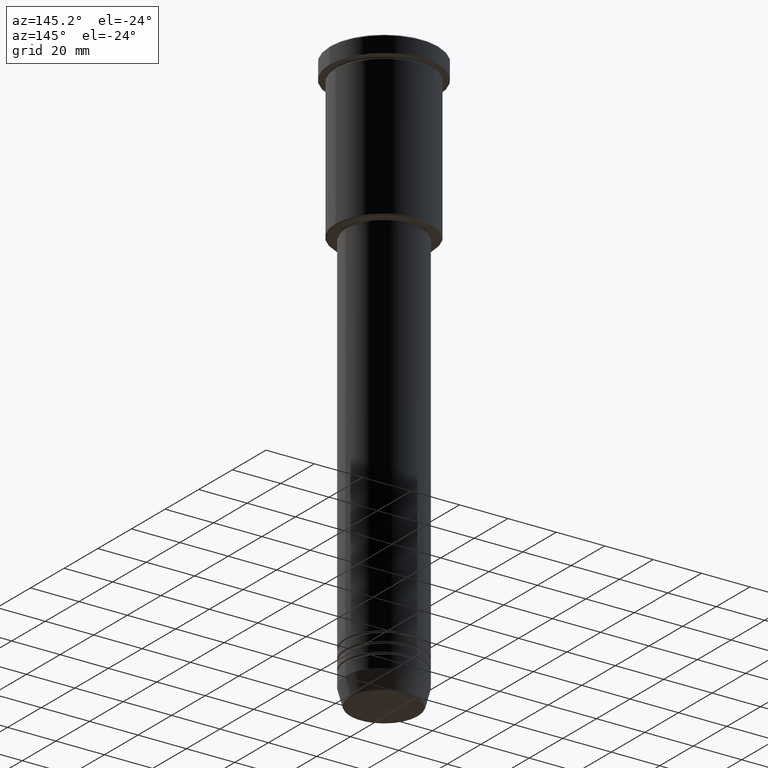
[diagram: clean part render]
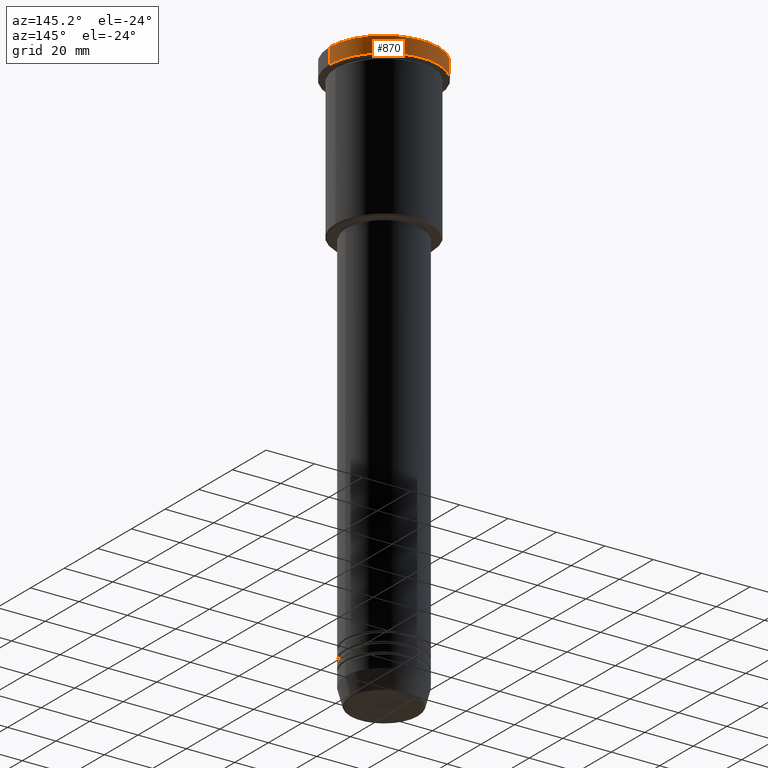
[diagram: same view with one face highlighted and labeled with its STEP entity id]
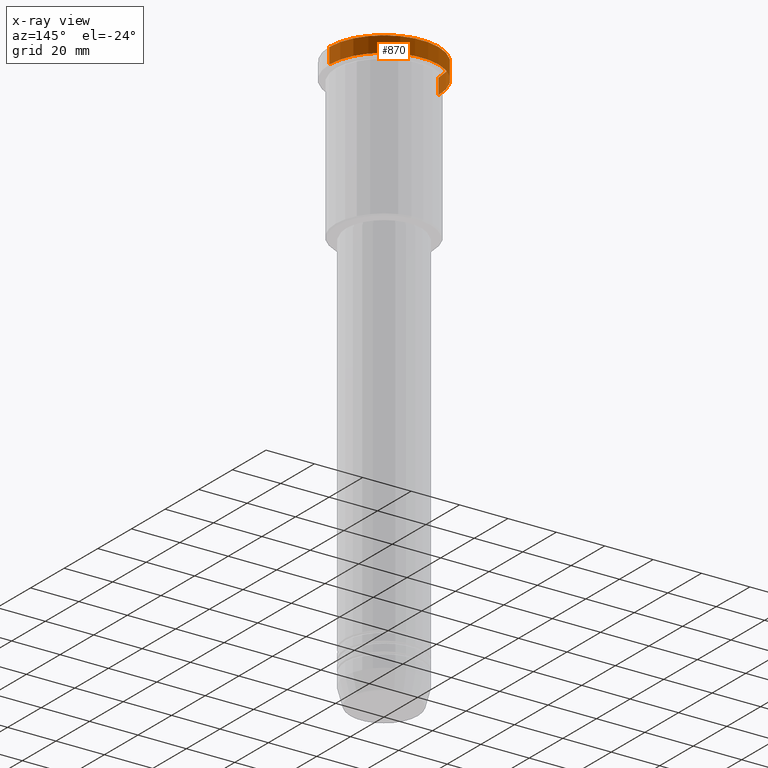
[diagram: x-ray of the same camera — body ghosted, the highlighted face saturated]
A machine part, auxiliary view. The second image highlights one B-rep face of the part: STEP entity #870.
The next image is the same camera in x-ray: the body ghosted, the highlighted face saturated — about 0% of this face is hidden behind the body in this view.
In plain terms, the highlighted cylindrical surface (partial cylindrical patch) has radius 22.5 mm, axis along (-0, -0, 1).
Its self-contained STEP definition (entity closure, byte-faithful):
#11 = CARTESIAN_POINT ( 'NONE',  ( 22.50000000000000000, 0.000000000000000000, -6.999999999999995559 ) ) ;
#45 = DIRECTION ( 'NONE',  ( 1.000000000000000000, 0.000000000000000000, 0.000000000000000000 ) ) ;
#59 = ORIENTED_EDGE ( 'NONE', *, *, #414, .F. ) ;
#68 = CARTESIAN_POINT ( 'NONE',  ( 0.000000000000000000, 0.000000000000000000, 0.000000000000000000 ) ) ;
#81 = DIRECTION ( 'NONE',  ( 1.000000000000000000, 0.000000000000000000, 0.000000000000000000 ) ) ;
#99 = FACE_OUTER_BOUND ( 'NONE', #1141, .T. ) ;
#220 = CARTESIAN_POINT ( 'NONE',  ( 22.50000000000000000, 0.000000000000000000, 0.000000000000000000 ) ) ;
#232 = VERTEX_POINT ( 'NONE', #11 ) ;
#237 = DIRECTION ( 'NONE',  ( -0.000000000000000000, -0.000000000000000000, 1.000000000000000000 ) ) ;
#282 = CARTESIAN_POINT ( 'NONE',  ( 22.50000000000000000, 0.000000000000000000, -0.5000000000000490719 ) ) ;
#305 = EDGE_CURVE ( 'NONE', #828, #947, #853, .T. ) ;
#311 = CARTESIAN_POINT ( 'NONE',  ( -22.50000000000000000, 2.755455298081544778E-15, -6.999999999999995559 ) ) ;
#313 = AXIS2_PLACEMENT_3D ( 'NONE', #68, #817, #81 ) ;
#324 = DIRECTION ( 'NONE',  ( -0.000000000000000000, -0.000000000000000000, 1.000000000000000000 ) ) ;
#346 = LINE ( 'NONE', #220, #937 ) ;
#349 = CARTESIAN_POINT ( 'NONE',  ( -22.50000000000000000, 2.755455298081544778E-15, 0.000000000000000000 ) ) ;
#414 = EDGE_CURVE ( 'NONE', #232, #947, #346, .T. ) ;
#426 = DIRECTION ( 'NONE',  ( 0.000000000000000000, 0.000000000000000000, -1.000000000000000000 ) ) ;
#471 = CYLINDRICAL_SURFACE ( 'NONE', #313, 22.50000000000000000 ) ;
#625 = DIRECTION ( 'NONE',  ( 1.000000000000000000, 0.000000000000000000, 0.000000000000000000 ) ) ;
#639 = EDGE_CURVE ( 'NONE', #1128, #828, #1145, .T. ) ;
#694 = CIRCLE ( 'NONE', #1115, 22.50000000000000000 ) ;
#699 = CARTESIAN_POINT ( 'NONE',  ( 0.000000000000000000, 0.000000000000000000, -0.5000000000000490719 ) ) ;
#752 = ORIENTED_EDGE ( 'NONE', *, *, #305, .T. ) ;
#778 = DIRECTION ( 'NONE',  ( -0.000000000000000000, -0.000000000000000000, 1.000000000000000000 ) ) ;
#795 = CARTESIAN_POINT ( 'NONE',  ( 0.000000000000000000, 0.000000000000000000, -6.999999999999995559 ) ) ;
#817 = DIRECTION ( 'NONE',  ( -0.000000000000000000, -0.000000000000000000, 1.000000000000000000 ) ) ;
#828 = VERTEX_POINT ( 'NONE', #1168 ) ;
#853 = CIRCLE ( 'NONE', #1117, 22.50000000000000000 ) ;
#870 = ADVANCED_FACE ( 'NONE', ( #99 ), #471, .T. ) ;
#899 = ORIENTED_EDGE ( 'NONE', *, *, #639, .T. ) ;
#935 = VECTOR ( 'NONE', #324, 1000.000000000000000 ) ;
#937 = VECTOR ( 'NONE', #237, 1000.000000000000000 ) ;
#947 = VERTEX_POINT ( 'NONE', #282 ) ;
#1094 = ORIENTED_EDGE ( 'NONE', *, *, #1120, .T. ) ;
#1115 = AXIS2_PLACEMENT_3D ( 'NONE', #795, #778, #45 ) ;
#1117 = AXIS2_PLACEMENT_3D ( 'NONE', #699, #426, #625 ) ;
#1120 = EDGE_CURVE ( 'NONE', #232, #1128, #694, .T. ) ;
#1128 = VERTEX_POINT ( 'NONE', #311 ) ;
#1141 = EDGE_LOOP ( 'NONE', ( #1094, #899, #752, #59 ) ) ;
#1145 = LINE ( 'NONE', #349, #935 ) ;
#1168 = CARTESIAN_POINT ( 'NONE',  ( -22.50000000000000000, 2.755455298081544778E-15, -0.5000000000000490719 ) ) ;